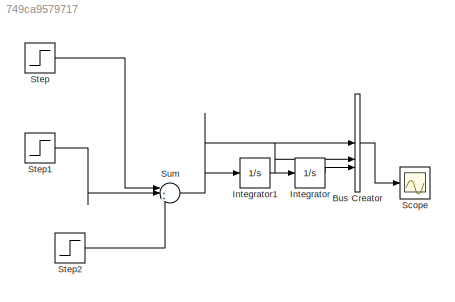
MODEL slx_749ca9579717
KIND model
CONFIG AbsTol = auto
CONFIG EnableMultiTasking = off
CONFIG FixedStep = auto
CONFIG MaxStep = auto
CONFIG MinStep = auto
CONFIG RelTol = 1e-3
CONFIG SampleTimeConstraint = Unconstrained
CONFIG SolverName = VariableStepAuto
CONFIG StartTime = 0.0
CONFIG StopTime = 10
BLOCK [BusCreator] Bus Creator
  DisplayOption = bar
  InheritFromInputs = on
  Inputs = 3
BLOCK [Integrator] Integrator
BLOCK [Integrator] Integrator1
BLOCK [Scope] Scope
  Floating = off
  NumInputPorts = 1
  ScopeSpecificationString = Simulink.scopes.TimeScopeBlockCfg('CurrentConfiguration', extmgr.ConfigurationSet(extmgr.Configuration('Core','General UI',true,'FigureColor',[1 1 1]),extmgr.Configuration('Core','Source UI',true),extmgr.Configuration('Sources','WiredSimulink',true),extmgr.Configuration('Visuals','Time Domain',true,'SerializedDisplays',{struct('MinYLimReal','-3.125','MaxYLimReal','18.125','YLabelReal','','MinYLimM...<+1591ch>
BLOCK [Step] Step
  SampleTime = 0
BLOCK [Step] Step1
  After = -1
  Before = 1
  SampleTime = 0
  Time = 5
BLOCK [Step] Step2
  After = 0
  Before = -1
  SampleTime = 0
  Time = 9
BLOCK [Sum] Sum
  Inputs = |+++
LINE Bus Creator:1 -> Scope:1
NET Integrator1:1 -> Bus Creator:2, Integrator:1
LINE Integrator:1 -> Bus Creator:3
LINE Step1:1 -> Sum:2
LINE Step2:1 -> Sum:3
LINE Step:1 -> Sum:1
NET Sum:1 -> Bus Creator:1, Integrator1:1
note: NET lines group one-source signal fan-out (src -> all destinations, sorted); 1:1 wires keep LINE
